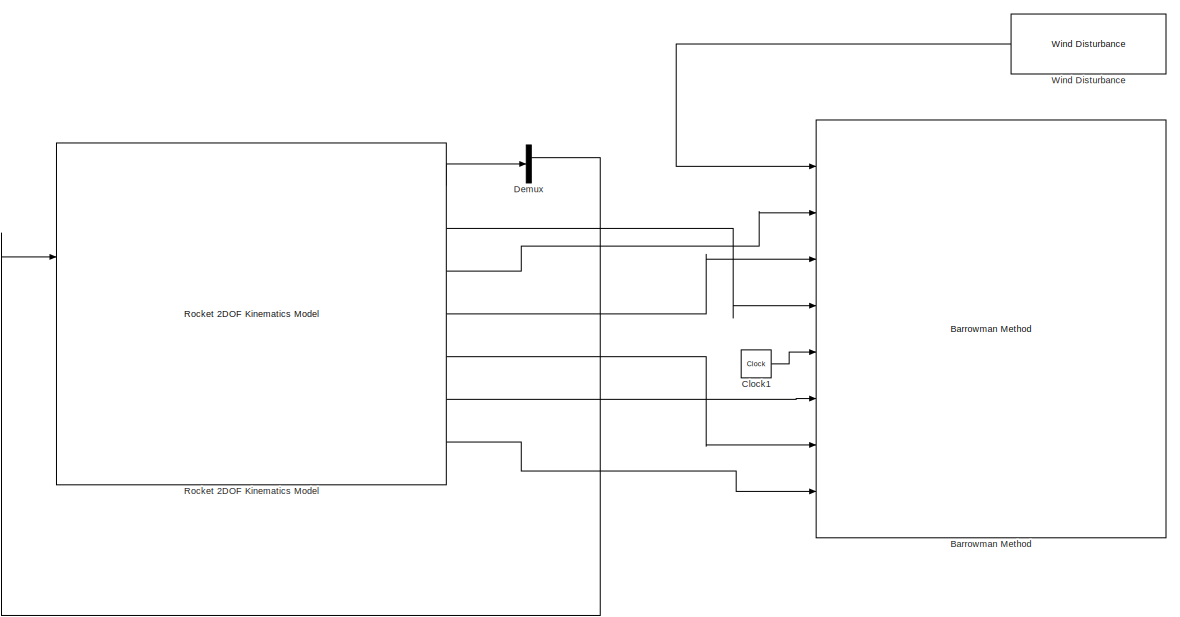
[diagram: root canvas - part 1/2, center side, full height]
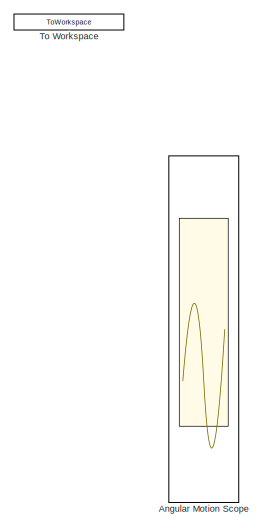
[diagram: root canvas - part 2/2, right side, full height]
MODEL slx_d7631e40a72b
KIND model
CONFIG AbsTol = auto
CONFIG FixedStep = 0.01
CONFIG MaxStep = auto
CONFIG MinStep = 0.01
CONFIG RelTol = 1e-3
CONFIG SampleTimeConstraint = Unconstrained
CONFIG Solver = ode3
CONFIG SolverMode = Auto
CONFIG SolverName = ode3
CONFIG StartTime = 0.0
CONFIG StopTime = 25
BLOCK [Scope] Angular Motion Scope
  DataFormat = StructureWithTime
  Floating = off
  NumInputPorts = 6
  Ports = [6]
  SampleTime = 0
  SaveName = ScopeData5
  ShowLegends = off
  TimeRange = 10
  YMax = 0.9~0.125~0.015~0.275~24~5
  YMin = -0.7~-0.125~-0.015~0.05~9~-5
BLOCK [Reference] Barrowman Method  REF=rocket_angular_flight_library/Barrowman Method
  Ports = [8, 7]
  SourceBlock = rocket_angular_flight_library/Barrowman Method
  SourceType = SubSystem
BLOCK [Clock] Clock1
  DisplayTime = on
BLOCK [Demux] Demux
  DisplayOption = bar
  Outputs = 2
  Ports = [1, 2]
BLOCK [Reference] Rocket 2DOF Kinematics Model  REF=rocket_vertical_flight_library/Rocket 2DOF Kinematics Model  (lib defined in slx_f0a917acac91)
  Ports = [2, 7]
  SourceBlock = rocket_vertical_flight_library/Rocket 2DOF Kinematics Model
  SourceType = SubSystem
BLOCK [ToWorkspace] To Workspace
  FixptAsFi = on
  MaxDataPoints = inf
  Ports = [1]
  SampleTime = -1
  Save2DSignal = 3-D array (concatenate along third dimension)
  VariableName = angular_position
BLOCK [Reference] Wind Disturbance  REF=rocket_angular_flight_library/Wind Disturbance
  Ports = [1, 1]
  SourceBlock = rocket_angular_flight_library/Wind Disturbance
  SourceType = SubSystem
LINE Clock1:1 -> Barrowman Method:5
LINE Demux:1 -> Rocket 2DOF Kinematics Model:1
LINE Rocket 2DOF Kinematics Model:1 -> Demux:1
LINE Rocket 2DOF Kinematics Model:2 -> Barrowman Method:4
LINE Rocket 2DOF Kinematics Model:3 -> Barrowman Method:2
LINE Rocket 2DOF Kinematics Model:4 -> Barrowman Method:3
LINE Rocket 2DOF Kinematics Model:5 -> Barrowman Method:7
LINE Rocket 2DOF Kinematics Model:6 -> Barrowman Method:6
LINE Rocket 2DOF Kinematics Model:7 -> Barrowman Method:8
LINE Wind Disturbance:1 -> Barrowman Method:1
